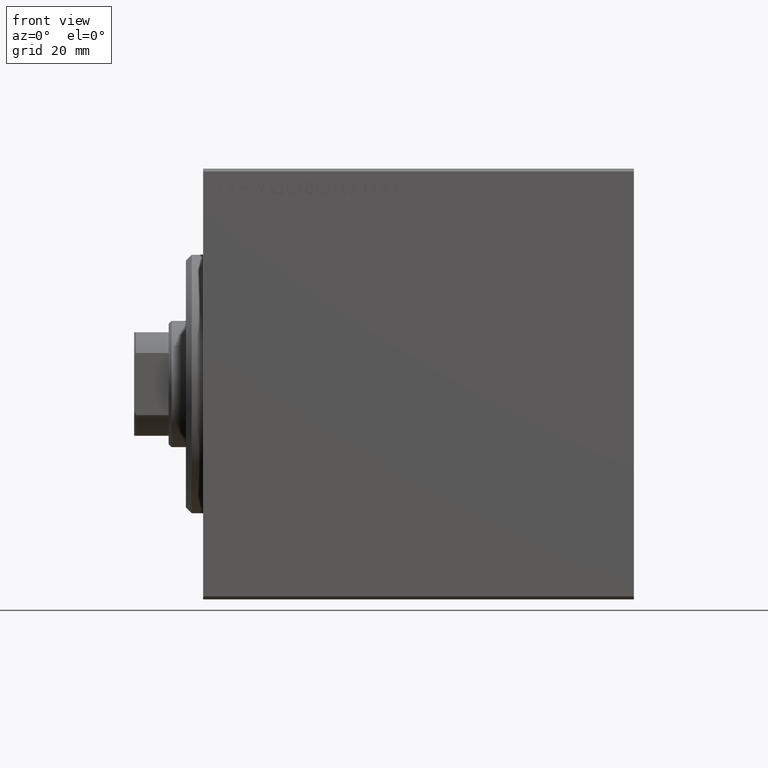
[diagram: clean part render]
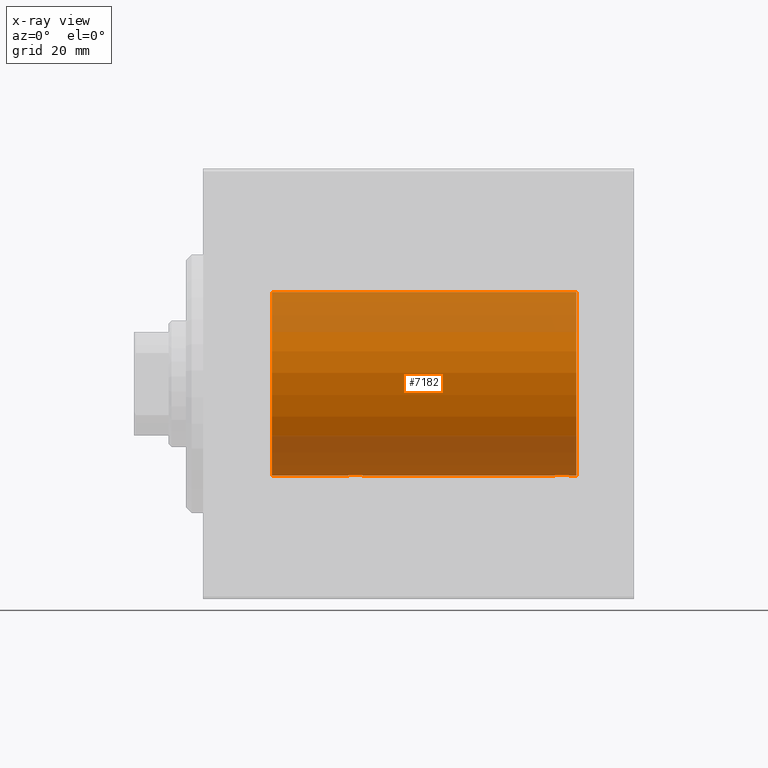
[diagram: x-ray — body ghosted, one internal face saturated and labeled with its STEP entity id]
A machine part, front view, then the same camera in x-ray: the body is ghosted and one INTERNAL B-rep face — a face not visible from any outside direction — is saturated and labeled: STEP entity #7182.
In plain terms, the highlighted cylindrical surface (partial cylindrical patch) has radius 16 mm, axis along (-1, -0, -0).
Its self-contained STEP definition (entity closure, byte-faithful):
#16 = CARTESIAN_POINT ( 'NONE',  ( 65.00000000000000000, 1.959434878635765131E-15, -16.00000000000000000 ) ) ;
#99 = B_SPLINE_CURVE_WITH_KNOTS ( 'NONE', 3,
 ( #32565, #15522, #15961, #12387, #39736, #43311, #9221, #29198, #42879, #12605, #12164, #39515, #22485, #32787, #2048, #36592, #43093, #9006, #22702, #36372, #16182, #2708, #33446, #40618, #10107, #16407 ),
 .UNSPECIFIED., .F., .F.,
 ( 4, 2, 2, 2, 2, 2, 2, 2, 2, 2, 2, 2, 4 ),
 ( 0.006259031236593884211, 0.007041222816026949764, 0.007823414395460014450, 0.008214510185176547227, 0.008605605974893080004, 0.008996701764609611046, 0.009387797554326143823, 0.009778893344042676600, 0.01016998913375920938, 0.01056108492347574042, 0.01095218071319227146, 0.01173437229262535089, 0.01251656387205843032 ),
 .UNSPECIFIED. ) ;
#102 = CARTESIAN_POINT ( 'NONE',  ( 11.99999999999999645, 1.959434878635765131E-15, -16.00000000000000000 ) ) ;
#124 = CARTESIAN_POINT ( 'NONE',  ( 65.00000000000000000, 0.000000000000000000, 16.00000000000000000 ) ) ;
#154 = EDGE_CURVE ( 'NONE', #4042, #42480, #14165, .T. ) ;
#443 = CARTESIAN_POINT ( 'NONE',  ( 27.82304844713206293, -1.505501573616970568, -15.92928245046054769 ) ) ;
#905 = CIRCLE ( 'NONE', #2241, 16.00000000000000000 ) ;
#1884 = EDGE_CURVE ( 'NONE', #30376, #5108, #99, .T. ) ;
#2048 = CARTESIAN_POINT ( 'NONE',  ( 62.23917179650635489, -1.987201773464436716, -15.87613558886576826 ) ) ;
#2117 = DIRECTION ( 'NONE',  ( 0.000000000000000000, 0.000000000000000000, 1.000000000000000000 ) ) ;
#2241 = AXIS2_PLACEMENT_3D ( 'NONE', #38187, #34370, #17339 ) ;
#2708 = CARTESIAN_POINT ( 'NONE',  ( 60.90236864042802267, -1.231048876942808956, -15.95364199493483426 ) ) ;
#2836 = EDGE_CURVE ( 'NONE', #36689, #28210, #40957, .T. ) ;
#3587 = CARTESIAN_POINT ( 'NONE',  ( 25.28178127159715416, -1.591545514129671046, -15.92081325887754950 ) ) ;
#3813 = CARTESIAN_POINT ( 'NONE',  ( 26.76370462878175971, -1.986819684797417995, -15.87618369521984185 ) ) ;
#4038 = CARTESIAN_POINT ( 'NONE',  ( 27.01937114547927266, -1.935780515549990088, -15.88248768234623221 ) ) ;
#4042 = VERTEX_POINT ( 'NONE', #37783 ) ;
#4992 = CARTESIAN_POINT ( 'NONE',  ( 28.49999999999999645, 1.959434851238818770E-15, -16.00000000000000000 ) ) ;
#5083 = CARTESIAN_POINT ( 'NONE',  ( 60.49999999999999289, -9.573340169032840992E-15, -16.00000000000000000 ) ) ;
#5108 = VERTEX_POINT ( 'NONE', #5083 ) ;
#5312 = CARTESIAN_POINT ( 'NONE',  ( 65.00000000000000000, 1.959434878635765131E-15, -16.00000000000000000 ) ) ;
#6147 = DIRECTION ( 'NONE',  ( -1.000000000000000000, 0.000000000000000000, 0.000000000000000000 ) ) ;
#6279 = DIRECTION ( 'NONE',  ( -1.000000000000000000, -0.000000000000000000, -0.000000000000000000 ) ) ;
#6955 = VERTEX_POINT ( 'NONE', #29376 ) ;
#7182 = ADVANCED_FACE ( 'NONE', ( #43163 ), #21905, .F. ) ;
#7219 = EDGE_CURVE ( 'NONE', #24071, #36689, #8207, .T. ) ;
#7265 = ORIENTED_EDGE ( 'NONE', *, *, #154, .T. ) ;
#7499 = B_SPLINE_CURVE_WITH_KNOTS ( 'NONE', 3,
 ( #4992, #39315, #11512, #25199, #38875, #443, #34323, #24680, #14368, #34543, #4038, #3813, #17957, #21544, #34987, #24458, #18177, #30962, #21327, #3587, #37702, #17291, #31631, #42162, #17740, #35209 ),
 .UNSPECIFIED., .F., .F.,
 ( 4, 2, 2, 2, 2, 2, 2, 2, 2, 2, 2, 2, 4 ),
 ( 0.006259031236593879007, 0.007041222816026946295, 0.007823414395460014450, 0.008214510185176547227, 0.008605605974893081739, 0.008996701764609614516, 0.009387797554326147292, 0.009778893344042681804, 0.01016998913375921632, 0.01056108492347574909, 0.01095218071319228187, 0.01173437229262534742, 0.01251656387205841471 ),
 .UNSPECIFIED. ) ;
#7545 = EDGE_CURVE ( 'NONE', #6955, #4042, #7499, .T. ) ;
#8207 = CIRCLE ( 'NONE', #33276, 16.00000000000000000 ) ;
#9006 = CARTESIAN_POINT ( 'NONE',  ( 61.61407850031504552, -1.797863738508707510, -15.89874935709250892 ) ) ;
#9221 = CARTESIAN_POINT ( 'NONE',  ( 63.72028033478409270, -1.589957129871035546, -15.92097237843274549 ) ) ;
#9269 = CARTESIAN_POINT ( 'NONE',  ( 65.00000000000000000, 1.959434878635765131E-15, -16.00000000000000000 ) ) ;
#9292 = DIRECTION ( 'NONE',  ( 0.000000000000000000, 0.000000000000000000, 1.000000000000000000 ) ) ;
#9611 = VECTOR ( 'NONE', #42773, 1000.000000000000000 ) ;
#10107 = CARTESIAN_POINT ( 'NONE',  ( 60.49999999999999289, -0.2645044045393447618, -16.00000000000000355 ) ) ;
#10382 = AXIS2_PLACEMENT_3D ( 'NONE', #12020, #32858, #2117 ) ;
#10437 = ORIENTED_EDGE ( 'NONE', *, *, #39525, .T. ) ;
#11157 = ORIENTED_EDGE ( 'NONE', *, *, #44116, .T. ) ;
#11512 = CARTESIAN_POINT ( 'NONE',  ( 28.44751141031269626, -0.5244724041436300555, -15.99321727742820975 ) ) ;
#12020 = CARTESIAN_POINT ( 'NONE',  ( 65.00000000000000000, 0.000000000000000000, 0.000000000000000000 ) ) ;
#12164 = CARTESIAN_POINT ( 'NONE',  ( 63.01937114547926910, -1.935780515549996306, -15.88248768234623221 ) ) ;
#12387 = CARTESIAN_POINT ( 'NONE',  ( 64.24816627006210012, -1.005876079953901048, -15.97016854943970188 ) ) ;
#12605 = CARTESIAN_POINT ( 'NONE',  ( 63.14636362870457020, -1.897207606501650989, -15.88720136683947182 ) ) ;
#13977 = ORIENTED_EDGE ( 'NONE', *, *, #35197, .T. ) ;
#14165 = LINE ( 'NONE', #16, #34632 ) ;
#14368 = CARTESIAN_POINT ( 'NONE',  ( 27.38846140829281595, -1.796613193944150755, -15.89889131367402975 ) ) ;
#15415 = LINE ( 'NONE', #5312, #9611 ) ;
#15505 = ORIENTED_EDGE ( 'NONE', *, *, #1884, .T. ) ;
#15522 = CARTESIAN_POINT ( 'NONE',  ( 64.50000000000000000, -0.2611263091397180713, -16.00000000000000355 ) ) ;
#15961 = CARTESIAN_POINT ( 'NONE',  ( 64.44751141031268560, -0.5244724041436317208, -15.99321727742820620 ) ) ;
#16182 = CARTESIAN_POINT ( 'NONE',  ( 61.17895665196596156, -1.507256214862792820, -15.92911555180481820 ) ) ;
#16407 = CARTESIAN_POINT ( 'NONE',  ( 60.49999999999999289, -9.573340169032840992E-15, -16.00000000000000000 ) ) ;
#17291 = CARTESIAN_POINT ( 'NONE',  ( 24.90236864042801557, -1.231048876942801407, -15.95364199493483426 ) ) ;
#17339 = DIRECTION ( 'NONE',  ( 0.000000000000000000, 0.000000000000000000, 1.000000000000000000 ) ) ;
#17740 = CARTESIAN_POINT ( 'NONE',  ( 24.50000000000001066, -0.2645044045393414867, -16.00000000000000711 ) ) ;
#17957 = CARTESIAN_POINT ( 'NONE',  ( 26.63366663175618854, -1.999904855391105851, -15.87451985347842687 ) ) ;
#18177 = CARTESIAN_POINT ( 'NONE',  ( 25.85623329282659455, -1.898087287925299016, -15.88709570026284545 ) ) ;
#21327 = CARTESIAN_POINT ( 'NONE',  ( 25.49921634246596369, -1.736521253711144741, -15.90565326803670665 ) ) ;
#21544 = CARTESIAN_POINT ( 'NONE',  ( 26.36919591423421494, -2.000094120337574388, -15.87449600834270669 ) ) ;
#21905 = CYLINDRICAL_SURFACE ( 'NONE', #10382, 16.00000000000000000 ) ;
#22485 = CARTESIAN_POINT ( 'NONE',  ( 62.63366663175617788, -1.999904855391111846, -15.87451985347842331 ) ) ;
#22702 = CARTESIAN_POINT ( 'NONE',  ( 61.49921634246595659, -1.736521253711153845, -15.90565326803670665 ) ) ;
#24071 = VERTEX_POINT ( 'NONE', #9269 ) ;
#24272 = CARTESIAN_POINT ( 'NONE',  ( 11.99999999999999645, 0.000000000000000000, 16.00000000000000000 ) ) ;
#24458 = CARTESIAN_POINT ( 'NONE',  ( 25.98335998918948775, -1.936513707523809469, -15.88239801746204805 ) ) ;
#24680 = CARTESIAN_POINT ( 'NONE',  ( 27.50320784791318118, -1.735114343256362712, -15.90580722143558212 ) ) ;
#24710 = VECTOR ( 'NONE', #34671, 1000.000000000000000 ) ;
#25199 = CARTESIAN_POINT ( 'NONE',  ( 28.24816627006210368, -1.005876079953898605, -15.97016854943969832 ) ) ;
#27625 = ORIENTED_EDGE ( 'NONE', *, *, #2836, .F. ) ;
#28210 = VERTEX_POINT ( 'NONE', #24272 ) ;
#29198 = CARTESIAN_POINT ( 'NONE',  ( 63.50320784791315987, -1.735114343256370040, -15.90580722143557502 ) ) ;
#29253 = CARTESIAN_POINT ( 'NONE',  ( 65.00000000000000000, 0.000000000000000000, 16.00000000000000000 ) ) ;
#29376 = CARTESIAN_POINT ( 'NONE',  ( 28.49999999999999645, 1.959434851238818770E-15, -16.00000000000000000 ) ) ;
#30049 = CARTESIAN_POINT ( 'NONE',  ( 64.50000000000000000, 1.959434851248285101E-15, -16.00000000000000000 ) ) ;
#30376 = VERTEX_POINT ( 'NONE', #30049 ) ;
#30564 = ORIENTED_EDGE ( 'NONE', *, *, #7545, .T. ) ;
#30962 = CARTESIAN_POINT ( 'NONE',  ( 25.61407850031505262, -1.797863738508699516, -15.89874935709250892 ) ) ;
#31631 = CARTESIAN_POINT ( 'NONE',  ( 24.75321871145306574, -1.008257970366812195, -15.97001510549667458 ) ) ;
#32565 = CARTESIAN_POINT ( 'NONE',  ( 64.50000000000000000, 1.959434851248285101E-15, -16.00000000000000000 ) ) ;
#32787 = CARTESIAN_POINT ( 'NONE',  ( 62.36919591423421849, -2.000094120337583714, -15.87449600834270669 ) ) ;
#32858 = DIRECTION ( 'NONE',  ( -1.000000000000000000, -0.000000000000000000, -0.000000000000000000 ) ) ;
#33276 = AXIS2_PLACEMENT_3D ( 'NONE', #36446, #6147, #9292 ) ;
#33446 = CARTESIAN_POINT ( 'NONE',  ( 60.75321871145306574, -1.008257970366820189, -15.97001510549667813 ) ) ;
#33647 = LINE ( 'NONE', #37024, #40288 ) ;
#34323 = CARTESIAN_POINT ( 'NONE',  ( 27.72028033478411757, -1.589957129871027330, -15.92097237843274904 ) ) ;
#34370 = DIRECTION ( 'NONE',  ( -1.000000000000000000, 0.000000000000000000, 0.000000000000000000 ) ) ;
#34543 = CARTESIAN_POINT ( 'NONE',  ( 27.14636362870457731, -1.897207606501644550, -15.88720136683946826 ) ) ;
#34632 = VECTOR ( 'NONE', #41298, 1000.000000000000000 ) ;
#34671 = DIRECTION ( 'NONE',  ( -1.000000000000000000, -0.000000000000000000, -0.000000000000000000 ) ) ;
#34987 = CARTESIAN_POINT ( 'NONE',  ( 26.23917179650635845, -1.987201773464429833, -15.87613558886576115 ) ) ;
#35197 = EDGE_CURVE ( 'NONE', #42480, #28210, #905, .T. ) ;
#35209 = CARTESIAN_POINT ( 'NONE',  ( 24.50000000000000000, -2.745261152005884500E-15, -16.00000000000000000 ) ) ;
#36372 = CARTESIAN_POINT ( 'NONE',  ( 61.28178127159713284, -1.591545514129680150, -15.92081325887754417 ) ) ;
#36446 = CARTESIAN_POINT ( 'NONE',  ( 65.00000000000000000, 0.000000000000000000, 0.000000000000000000 ) ) ;
#36592 = CARTESIAN_POINT ( 'NONE',  ( 61.98335998918948775, -1.936513707523816574, -15.88239801746205515 ) ) ;
#36689 = VERTEX_POINT ( 'NONE', #29253 ) ;
#37024 = CARTESIAN_POINT ( 'NONE',  ( 65.00000000000000000, 1.959434878635765131E-15, -16.00000000000000000 ) ) ;
#37702 = CARTESIAN_POINT ( 'NONE',  ( 25.17895665196595445, -1.507256214862784383, -15.92911555180481820 ) ) ;
#37783 = CARTESIAN_POINT ( 'NONE',  ( 24.50000000000000000, -2.745261152005884500E-15, -16.00000000000000000 ) ) ;
#38187 = CARTESIAN_POINT ( 'NONE',  ( 11.99999999999999645, 0.000000000000000000, 0.000000000000000000 ) ) ;
#38875 = CARTESIAN_POINT ( 'NONE',  ( 28.09938581325380369, -1.228793614424118497, -15.95381972293797013 ) ) ;
#39315 = CARTESIAN_POINT ( 'NONE',  ( 28.50000000000000000, -0.2611263091397177383, -16.00000000000000000 ) ) ;
#39515 = CARTESIAN_POINT ( 'NONE',  ( 62.76370462878178103, -1.986819684797425767, -15.87618369521983475 ) ) ;
#39525 = EDGE_CURVE ( 'NONE', #24071, #30376, #33647, .T. ) ;
#39736 = CARTESIAN_POINT ( 'NONE',  ( 64.09938581325380369, -1.228793614424120051, -15.95381972293796480 ) ) ;
#40288 = VECTOR ( 'NONE', #6279, 1000.000000000000000 ) ;
#40618 = CARTESIAN_POINT ( 'NONE',  ( 60.55325995304358599, -0.5272875822566914783, -15.99312147175147025 ) ) ;
#40648 = ORIENTED_EDGE ( 'NONE', *, *, #7219, .F. ) ;
#40957 = LINE ( 'NONE', #124, #24710 ) ;
#41298 = DIRECTION ( 'NONE',  ( -1.000000000000000000, -0.000000000000000000, -0.000000000000000000 ) ) ;
#42162 = CARTESIAN_POINT ( 'NONE',  ( 24.55325995304361086, -0.5272875822566830406, -15.99312147175148091 ) ) ;
#42480 = VERTEX_POINT ( 'NONE', #102 ) ;
#42504 = EDGE_LOOP ( 'NONE', ( #40648, #10437, #15505, #11157, #30564, #7265, #13977, #27625 ) ) ;
#42773 = DIRECTION ( 'NONE',  ( -1.000000000000000000, -0.000000000000000000, -0.000000000000000000 ) ) ;
#42879 = CARTESIAN_POINT ( 'NONE',  ( 63.38846140829282660, -1.796613193944156084, -15.89889131367402975 ) ) ;
#43093 = CARTESIAN_POINT ( 'NONE',  ( 61.85623329282659455, -1.898087287925307232, -15.88709570026284545 ) ) ;
#43163 = FACE_OUTER_BOUND ( 'NONE', #42504, .T. ) ;
#43311 = CARTESIAN_POINT ( 'NONE',  ( 63.82304844713207359, -1.505501573616973898, -15.92928245046055302 ) ) ;
#44116 = EDGE_CURVE ( 'NONE', #5108, #6955, #15415, .T. ) ;